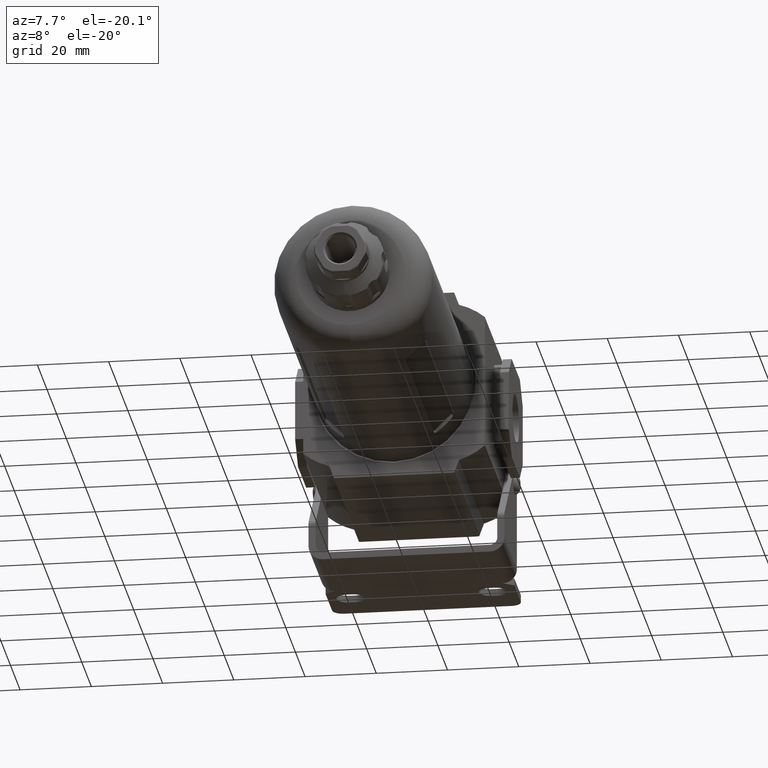
[diagram: clean part render]
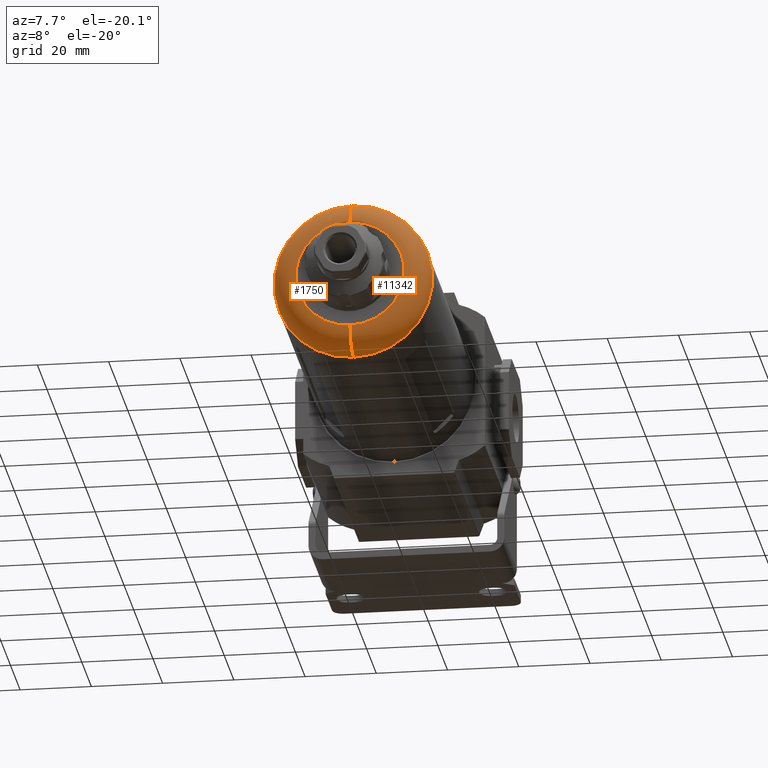
[diagram: same view with one multi-face feature highlighted, each face labeled with its STEP entity id]
A machine part, auxiliary view. The highlighted faces form ONE feature: a constant-radius fillet chain: 2 tangent blend faces with common blend radius 7 mm. The faces share edges in the B-rep.
Their STEP definitions:
[1] entity #11342 (Torus):
#97 = DIRECTION ( 'NONE',  ( -0.0000000000000000000, 1.000000000000000000, -0.0000000000000000000 ) ) ;
#299 = AXIS2_PLACEMENT_3D ( 'NONE', #5718, #97, #6675 ) ;
#349 = VERTEX_POINT ( 'NONE', #983 ) ;
#607 = DIRECTION ( 'NONE',  ( -1.000000000000000000, -0.0000000000000000000, -0.0000000000000000000 ) ) ;
#660 = EDGE_CURVE ( 'NONE', #9376, #6535, #6933, .T. ) ;
#983 = CARTESIAN_POINT ( 'NONE',  ( 2.294375778202566200E-015, -122.3000000000000000, 15.23500000000000100 ) ) ;
#2076 = FACE_OUTER_BOUND ( 'NONE', #9226, .T. ) ;
#2141 = CARTESIAN_POINT ( 'NONE',  ( 0.0000000000000000000, -122.3000000000000000, 0.0000000000000000000 ) ) ;
#2334 = AXIS2_PLACEMENT_3D ( 'NONE', #11211, #5550, #12164 ) ;
#2377 = ORIENTED_EDGE ( 'NONE', *, *, #12073, .F. ) ;
#2572 = CARTESIAN_POINT ( 'NONE',  ( 0.0000000000000000000, -115.2999999999999800, 0.0000000000000000000 ) ) ;
#2612 = EDGE_CURVE ( 'NONE', #6535, #349, #9940, .T. ) ;
#2977 = AXIS2_PLACEMENT_3D ( 'NONE', #2572, #9157, #10093 ) ;
#3030 = AXIS2_PLACEMENT_3D ( 'NONE', #2141, #8713, #3071 ) ;
#3071 = DIRECTION ( 'NONE',  ( 0.0000000000000000000, 0.0000000000000000000, -1.000000000000000000 ) ) ;
#3199 = VERTEX_POINT ( 'NONE', #5824 ) ;
#3621 = AXIS2_PLACEMENT_3D ( 'NONE', #9516, #607, #8388 ) ;
#3703 = ORIENTED_EDGE ( 'NONE', *, *, #660, .F. ) ;
#4498 = CARTESIAN_POINT ( 'NONE',  ( 0.0000000000000000000, -115.2999999999999800, -22.23500000000000300 ) ) ;
#5550 = DIRECTION ( 'NONE',  ( 1.000000000000000000, 0.0000000000000000000, -1.224646799147353200E-016 ) ) ;
#5718 = CARTESIAN_POINT ( 'NONE',  ( 0.0000000000000000000, -115.2999999999999800, 0.0000000000000000000 ) ) ;
#5824 = CARTESIAN_POINT ( 'NONE',  ( 2.723002157904140000E-015, -115.2999999999999800, 22.23500000000000300 ) ) ;
#6361 = ORIENTED_EDGE ( 'NONE', *, *, #2612, .F. ) ;
#6535 = VERTEX_POINT ( 'NONE', #8492 ) ;
#6675 = DIRECTION ( 'NONE',  ( 0.0000000000000000000, 0.0000000000000000000, -1.000000000000000000 ) ) ;
#6774 = TOROIDAL_SURFACE ( 'NONE', #2977, 15.23500000000000100, 7.000000000000000000 ) ;
#6933 = CIRCLE ( 'NONE', #3621, 6.999999999999999100 ) ;
#6936 = EDGE_CURVE ( 'NONE', #3199, #349, #12147, .T. ) ;
#7044 = CIRCLE ( 'NONE', #299, 22.23500000000000300 ) ;
#8219 = ORIENTED_EDGE ( 'NONE', *, *, #6936, .T. ) ;
#8388 = DIRECTION ( 'NONE',  ( 0.0000000000000000000, 0.0000000000000000000, 1.000000000000000000 ) ) ;
#8492 = CARTESIAN_POINT ( 'NONE',  ( 0.0000000000000000000, -122.3000000000000000, -15.23500000000000100 ) ) ;
#8713 = DIRECTION ( 'NONE',  ( 0.0000000000000000000, -1.000000000000000000, 0.0000000000000000000 ) ) ;
#9157 = DIRECTION ( 'NONE',  ( 0.0000000000000000000, -1.000000000000000000, 0.0000000000000000000 ) ) ;
#9226 = EDGE_LOOP ( 'NONE', ( #2377, #8219, #6361, #3703 ) ) ;
#9376 = VERTEX_POINT ( 'NONE', #4498 ) ;
#9516 = CARTESIAN_POINT ( 'NONE',  ( 0.0000000000000000000, -115.2999999999999800, -15.23500000000000100 ) ) ;
#9940 = CIRCLE ( 'NONE', #3030, 15.23500000000000100 ) ;
#10093 = DIRECTION ( 'NONE',  ( 0.0000000000000000000, 0.0000000000000000000, -1.000000000000000000 ) ) ;
#11211 = CARTESIAN_POINT ( 'NONE',  ( 1.865749398500992800E-015, -115.2999999999999800, 15.23500000000000100 ) ) ;
#11342 = ADVANCED_FACE ( 'NONE', ( #2076 ), #6774, .T. ) ;
#12073 = EDGE_CURVE ( 'NONE', #3199, #9376, #7044, .T. ) ;
#12147 = CIRCLE ( 'NONE', #2334, 6.999999999999999100 ) ;
#12164 = DIRECTION ( 'NONE',  ( -1.224646799147353500E-016, 0.0000000000000000000, -1.000000000000000000 ) ) ;
[2] entity #1750 (Torus):
#224 = EDGE_CURVE ( 'NONE', #9376, #3199, #6359, .T. ) ;
#349 = VERTEX_POINT ( 'NONE', #983 ) ;
#483 = CARTESIAN_POINT ( 'NONE',  ( 0.0000000000000000000, -115.2999999999999800, 0.0000000000000000000 ) ) ;
#607 = DIRECTION ( 'NONE',  ( -1.000000000000000000, -0.0000000000000000000, -0.0000000000000000000 ) ) ;
#660 = EDGE_CURVE ( 'NONE', #9376, #6535, #6933, .T. ) ;
#983 = CARTESIAN_POINT ( 'NONE',  ( 2.294375778202566200E-015, -122.3000000000000000, 15.23500000000000100 ) ) ;
#1428 = DIRECTION ( 'NONE',  ( 0.0000000000000000000, 0.0000000000000000000, -1.000000000000000000 ) ) ;
#1750 = ADVANCED_FACE ( 'NONE', ( #9374 ), #7431, .T. ) ;
#2334 = AXIS2_PLACEMENT_3D ( 'NONE', #11211, #5550, #12164 ) ;
#2621 = ORIENTED_EDGE ( 'NONE', *, *, #224, .F. ) ;
#2786 = CARTESIAN_POINT ( 'NONE',  ( 0.0000000000000000000, -115.2999999999999800, 0.0000000000000000000 ) ) ;
#3199 = VERTEX_POINT ( 'NONE', #5824 ) ;
#3268 = EDGE_LOOP ( 'NONE', ( #6467, #2621, #5762, #8392 ) ) ;
#3620 = DIRECTION ( 'NONE',  ( 0.0000000000000000000, -1.000000000000000000, 0.0000000000000000000 ) ) ;
#3621 = AXIS2_PLACEMENT_3D ( 'NONE', #9516, #607, #8388 ) ;
#4498 = CARTESIAN_POINT ( 'NONE',  ( 0.0000000000000000000, -115.2999999999999800, -22.23500000000000300 ) ) ;
#4664 = DIRECTION ( 'NONE',  ( 0.0000000000000000000, 0.0000000000000000000, -1.000000000000000000 ) ) ;
#5550 = DIRECTION ( 'NONE',  ( 1.000000000000000000, 0.0000000000000000000, -1.224646799147353200E-016 ) ) ;
#5578 = EDGE_CURVE ( 'NONE', #349, #6535, #7189, .T. ) ;
#5762 = ORIENTED_EDGE ( 'NONE', *, *, #660, .T. ) ;
#5824 = CARTESIAN_POINT ( 'NONE',  ( 2.723002157904140000E-015, -115.2999999999999800, 22.23500000000000300 ) ) ;
#5997 = AXIS2_PLACEMENT_3D ( 'NONE', #483, #7046, #1428 ) ;
#6359 = CIRCLE ( 'NONE', #5997, 22.23500000000000300 ) ;
#6467 = ORIENTED_EDGE ( 'NONE', *, *, #6936, .F. ) ;
#6535 = VERTEX_POINT ( 'NONE', #8492 ) ;
#6933 = CIRCLE ( 'NONE', #3621, 6.999999999999999100 ) ;
#6936 = EDGE_CURVE ( 'NONE', #3199, #349, #12147, .T. ) ;
#7046 = DIRECTION ( 'NONE',  ( -0.0000000000000000000, 1.000000000000000000, -0.0000000000000000000 ) ) ;
#7108 = AXIS2_PLACEMENT_3D ( 'NONE', #2786, #9385, #4664 ) ;
#7189 = CIRCLE ( 'NONE', #10030, 15.23500000000000100 ) ;
#7431 = TOROIDAL_SURFACE ( 'NONE', #7108, 15.23500000000000100, 7.000000000000000000 ) ;
#8388 = DIRECTION ( 'NONE',  ( 0.0000000000000000000, 0.0000000000000000000, 1.000000000000000000 ) ) ;
#8392 = ORIENTED_EDGE ( 'NONE', *, *, #5578, .F. ) ;
#8492 = CARTESIAN_POINT ( 'NONE',  ( 0.0000000000000000000, -122.3000000000000000, -15.23500000000000100 ) ) ;
#9259 = CARTESIAN_POINT ( 'NONE',  ( 0.0000000000000000000, -122.3000000000000000, 0.0000000000000000000 ) ) ;
#9374 = FACE_OUTER_BOUND ( 'NONE', #3268, .T. ) ;
#9376 = VERTEX_POINT ( 'NONE', #4498 ) ;
#9385 = DIRECTION ( 'NONE',  ( 0.0000000000000000000, -1.000000000000000000, 0.0000000000000000000 ) ) ;
#9516 = CARTESIAN_POINT ( 'NONE',  ( 0.0000000000000000000, -115.2999999999999800, -15.23500000000000100 ) ) ;
#10030 = AXIS2_PLACEMENT_3D ( 'NONE', #9259, #3620, #10208 ) ;
#10208 = DIRECTION ( 'NONE',  ( 0.0000000000000000000, 0.0000000000000000000, -1.000000000000000000 ) ) ;
#11211 = CARTESIAN_POINT ( 'NONE',  ( 1.865749398500992800E-015, -115.2999999999999800, 15.23500000000000100 ) ) ;
#12147 = CIRCLE ( 'NONE', #2334, 6.999999999999999100 ) ;
#12164 = DIRECTION ( 'NONE',  ( -1.224646799147353500E-016, 0.0000000000000000000, -1.000000000000000000 ) ) ;